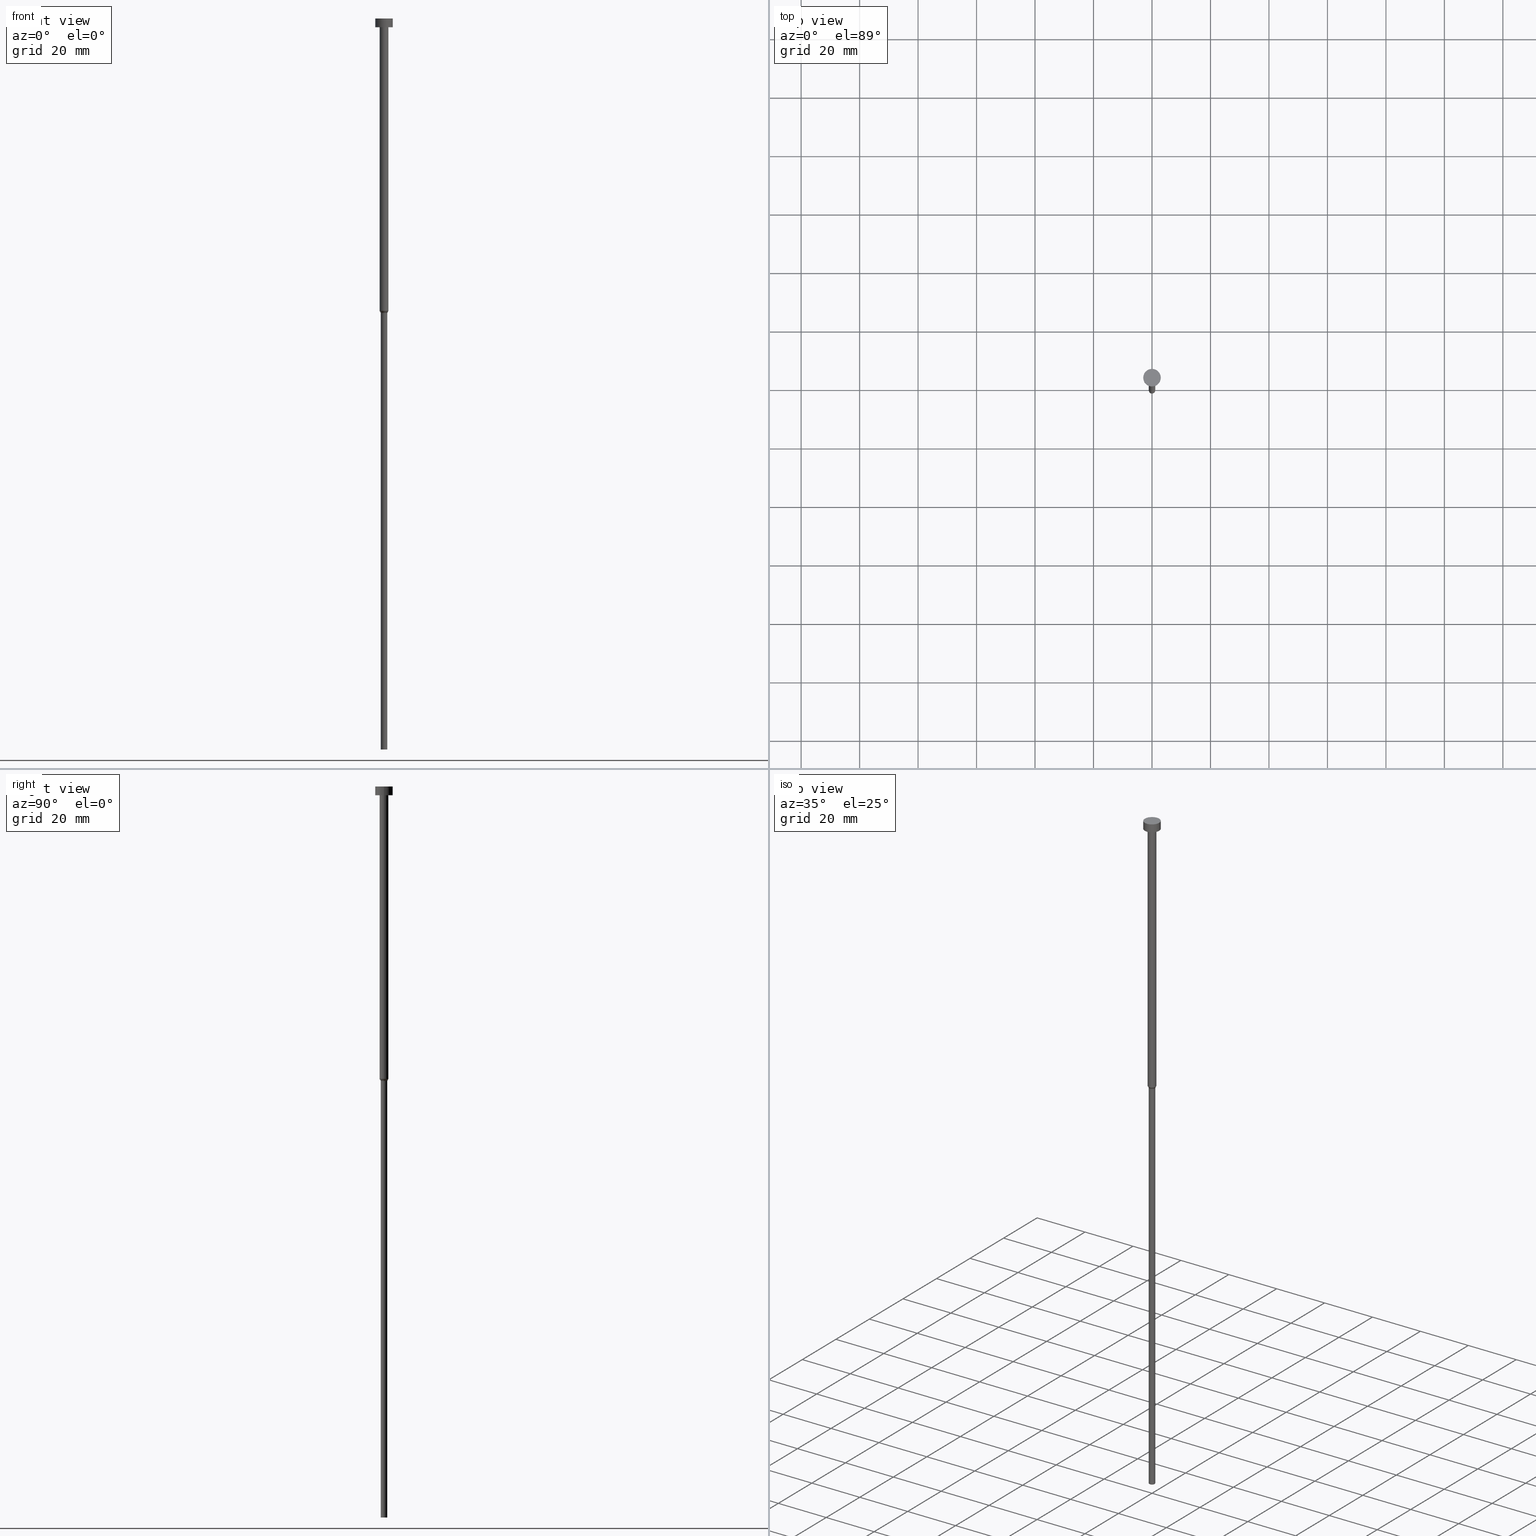
[diagram: canonical four-view strip — front | top / right | iso, engineering-drawing reading convention]
A machine part, canonical four-view strip (front | top / right | iso — engineering-drawing reading convention). The complete STEP part file that produces these views, byte-faithful:
ISO-10303-21;
HEADER;
FILE_DESCRIPTION (( 'STEP AP203' ),
    '1' );
FILE_NAME ('b989.STEP',
    '2023-02-13T09:00:45',
    ( '' ),
    ( '' ),
    'SwSTEP 2.0',
    'SolidWorks 2019',
    '' );
FILE_SCHEMA (( 'CONFIG_CONTROL_DESIGN' ));
ENDSEC;

DATA;
#1 = CONICAL_SURFACE ( 'NONE', #105, 1.500000000000000000, 0.5235987755983105840 ) ;
#2 = CARTESIAN_POINT ( 'NONE',  ( 0.000000000000000000, 0.000000000000000000, 0.000000000000000000 ) ) ;
#3 = FACE_OUTER_BOUND ( 'NONE', #237, .T. ) ;
#4 = AXIS2_PLACEMENT_3D ( 'NONE', #355, #332, #263 ) ;
#5 = LOCAL_TIME ( 10, 0, 45.00000000000000000, #192 ) ;
#6 = CARTESIAN_POINT ( 'NONE',  ( -1.100000000000000089, 1.347111479062088503E-16, -250.0000000000000000 ) ) ;
#7 = PRODUCT_RELATED_PRODUCT_CATEGORY ( 'detail', '', ( #226 ) ) ;
#8 = CARTESIAN_POINT ( 'NONE',  ( -3.000000000000000000, 3.673940397442059868E-16, -3.000000000000000888 ) ) ;
#9 = CARTESIAN_POINT ( 'NONE',  ( 3.000000000000000000, 0.000000000000000000, -3.673940397442059868E-16 ) ) ;
#10 = LOCAL_TIME ( 10, 0, 45.00000000000000000, #152 ) ;
#11 = DIRECTION ( 'NONE',  ( -0.000000000000000000, -0.000000000000000000, 1.000000000000000000 ) ) ;
#12 = CC_DESIGN_APPROVAL ( #302, ( #97 ) ) ;
#13 = PERSON_AND_ORGANIZATION ( #285, #63 ) ;
#14 = ORIENTED_EDGE ( 'NONE', *, *, #114, .F. ) ;
#15 = PERSON_AND_ORGANIZATION ( #285, #63 ) ;
#16 =( GEOMETRIC_REPRESENTATION_CONTEXT ( 3 ) GLOBAL_UNCERTAINTY_ASSIGNED_CONTEXT ( ( #299 ) ) GLOBAL_UNIT_ASSIGNED_CONTEXT ( ( #288, #94, #34 ) ) REPRESENTATION_CONTEXT ( 'NONE', 'WORKASPACE' ) );
#17 = ORIENTED_EDGE ( 'NONE', *, *, #345, .F. ) ;
#18 = PERSON_AND_ORGANIZATION_ROLE ( 'design_supplier' ) ;
#19 = EDGE_LOOP ( 'NONE', ( #153, #314, #130, #289 ) ) ;
#20 = VERTEX_POINT ( 'NONE', #193 ) ;
#21 = ADVANCED_FACE ( 'NONE', ( #244 ), #101, .T. ) ;
#22 = ORIENTED_EDGE ( 'NONE', *, *, #56, .F. ) ;
#23 = DIRECTION ( 'NONE',  ( -0.000000000000000000, -0.000000000000000000, 1.000000000000000000 ) ) ;
#24 = DIRECTION ( 'NONE',  ( 1.000000000000000000, 0.000000000000000000, 0.000000000000000000 ) ) ;
#25 = CYLINDRICAL_SURFACE ( 'NONE', #68, 1.500000000000000000 ) ;
#26 = DIRECTION ( 'NONE',  ( -0.000000000000000000, -0.000000000000000000, 1.000000000000000000 ) ) ;
#27 = DIRECTION ( 'NONE',  ( -0.000000000000000000, -0.000000000000000000, 1.000000000000000000 ) ) ;
#28 = CARTESIAN_POINT ( 'NONE',  ( 0.000000000000000000, 0.000000000000000000, -3.673940397442059868E-16 ) ) ;
#29 = DIRECTION ( 'NONE',  ( -0.000000000000000000, -0.000000000000000000, 1.000000000000000000 ) ) ;
#30 = DIRECTION ( 'NONE',  ( 1.000000000000000000, 0.000000000000000000, 0.000000000000000000 ) ) ;
#31 = DIRECTION ( 'NONE',  ( 1.000000000000000000, 0.000000000000000000, 0.000000000000000000 ) ) ;
#32 = ADVANCED_FACE ( 'NONE', ( #163 ), #1, .T. ) ;
#33 = ORIENTED_EDGE ( 'NONE', *, *, #354, .T. ) ;
#34 =( NAMED_UNIT ( * ) SI_UNIT ( $, .STERADIAN. ) SOLID_ANGLE_UNIT ( ) );
#35 = ORIENTED_EDGE ( 'NONE', *, *, #277, .F. ) ;
#36 = DATE_TIME_ROLE ( 'classification_date' ) ;
#37 = VERTEX_POINT ( 'NONE', #296 ) ;
#38 = PERSON_AND_ORGANIZATION_ROLE ( 'design_owner' ) ;
#39 = ORIENTED_EDGE ( 'NONE', *, *, #213, .F. ) ;
#40 = APPROVAL_STATUS ( 'not_yet_approved' ) ;
#41 = ORIENTED_EDGE ( 'NONE', *, *, #309, .F. ) ;
#42 = CARTESIAN_POINT ( 'NONE',  ( -1.500000000000000000, 1.836970198721029934E-16, -3.000000000000000888 ) ) ;
#43 = CIRCLE ( 'NONE', #161, 1.100000000000000089 ) ;
#44 = DIRECTION ( 'NONE',  ( -0.000000000000000000, -0.000000000000000000, 1.000000000000000000 ) ) ;
#45 = DIRECTION ( 'NONE',  ( -0.000000000000000000, -0.000000000000000000, 1.000000000000000000 ) ) ;
#46 = SHAPE_DEFINITION_REPRESENTATION ( #116, #74 ) ;
#47 = LINE ( 'NONE', #300, #272 ) ;
#48 = LOCAL_TIME ( 10, 0, 45.00000000000000000, #186 ) ;
#49 = DIRECTION ( 'NONE',  ( 1.000000000000000000, 0.000000000000000000, 0.000000000000000000 ) ) ;
#50 = PLANE ( 'NONE',  #225 ) ;
#51 = LINE ( 'NONE', #227, #154 ) ;
#52 = APPROVAL_PERSON_ORGANIZATION ( #159, #302, #340 ) ;
#53 = CARTESIAN_POINT ( 'NONE',  ( 3.000000000000000000, 0.000000000000000000, 0.000000000000000000 ) ) ;
#54 = FACE_OUTER_BOUND ( 'NONE', #206, .T. ) ;
#55 = CARTESIAN_POINT ( 'NONE',  ( 0.000000000000000000, 0.000000000000000000, -1.836970198721029934E-16 ) ) ;
#56 = EDGE_CURVE ( 'NONE', #230, #317, #188, .T. ) ;
#57 = DIRECTION ( 'NONE',  ( 1.000000000000000000, 0.000000000000000000, 0.000000000000000000 ) ) ;
#58 = VERTEX_POINT ( 'NONE', #75 ) ;
#59 = PERSON_AND_ORGANIZATION ( #285, #63 ) ;
#60 = ORIENTED_EDGE ( 'NONE', *, *, #86, .T. ) ;
#61 = PERSON_AND_ORGANIZATION_ROLE ( 'classification_officer' ) ;
#62 = ORIENTED_EDGE ( 'NONE', *, *, #328, .T. ) ;
#63 = ORGANIZATION ( 'NEUR�EN�', 'NEUR�EN�', '' ) ;
#64 = ORIENTED_EDGE ( 'NONE', *, *, #236, .T. ) ;
#65 = ADVANCED_FACE ( 'NONE', ( #77 ), #350, .T. ) ;
#66 = PERSON_AND_ORGANIZATION_ROLE ( 'creator' ) ;
#67 = ORIENTED_EDGE ( 'NONE', *, *, #354, .F. ) ;
#68 = AXIS2_PLACEMENT_3D ( 'NONE', #217, #106, #24 ) ;
#69 = CARTESIAN_POINT ( 'NONE',  ( 0.000000000000000000, 0.000000000000000000, -100.0000000000000000 ) ) ;
#70 = EDGE_CURVE ( 'NONE', #20, #127, #294, .T. ) ;
#71 = EDGE_CURVE ( 'NONE', #292, #234, #191, .T. ) ;
#72 = CARTESIAN_POINT ( 'NONE',  ( 0.000000000000000000, 0.000000000000000000, -3.000000000000000888 ) ) ;
#73 = CONICAL_SURFACE ( 'NONE', #276, 1.500000000000000000, 0.5235987755983105840 ) ;
#74 = ADVANCED_BREP_SHAPE_REPRESENTATION ( 'b989', ( #83, #184 ), #16 ) ;
#75 = CARTESIAN_POINT ( 'NONE',  ( 1.500000000000000000, 0.000000000000000000, -100.0000000000000000 ) ) ;
#76 = DIRECTION ( 'NONE',  ( 1.000000000000000000, 0.000000000000000000, 0.000000000000000000 ) ) ;
#77 = FACE_OUTER_BOUND ( 'NONE', #133, .T. ) ;
#78 = CIRCLE ( 'NONE', #298, 1.100000000000000089 ) ;
#79 = DIRECTION ( 'NONE',  ( 0.000000000000000000, 0.000000000000000000, -1.000000000000000000 ) ) ;
#80 = AXIS2_PLACEMENT_3D ( 'NONE', #2, #194, #297 ) ;
#81 = CARTESIAN_POINT ( 'NONE',  ( 1.500000000000000000, 0.000000000000000000, 0.000000000000000000 ) ) ;
#82 = VECTOR ( 'NONE', #29, 1000.000000000000000 ) ;
#83 = MANIFOLD_SOLID_BREP ( 'Rotovat1', #264 ) ;
#84 = DIRECTION ( 'NONE',  ( 1.000000000000000000, 0.000000000000000000, 0.000000000000000000 ) ) ;
#85 = CARTESIAN_POINT ( 'NONE',  ( 0.000000000000000000, 0.000000000000000000, -100.6928203230275329 ) ) ;
#86 = EDGE_CURVE ( 'NONE', #179, #127, #344, .T. ) ;
#87 = CARTESIAN_POINT ( 'NONE',  ( -3.000000000000000000, 3.673940397442059868E-16, -3.673940397442059868E-16 ) ) ;
#88 = AXIS2_PLACEMENT_3D ( 'NONE', #305, #172, #30 ) ;
#89 = DATE_AND_TIME ( #342, #169 ) ;
#90 = ORIENTED_EDGE ( 'NONE', *, *, #70, .F. ) ;
#91 = DIRECTION ( 'NONE',  ( 1.000000000000000000, 0.000000000000000000, 0.000000000000000000 ) ) ;
#92 = ORIENTED_EDGE ( 'NONE', *, *, #213, .T. ) ;
#93 = ADVANCED_FACE ( 'NONE', ( #3 ), #25, .T. ) ;
#94 =( NAMED_UNIT ( * ) PLANE_ANGLE_UNIT ( ) SI_UNIT ( $, .RADIAN. ) );
#95 = ORIENTED_EDGE ( 'NONE', *, *, #223, .T. ) ;
#96 = DATE_AND_TIME ( #235, #10 ) ;
#97 = PRODUCT_DEFINITION_FORMATION_WITH_SPECIFIED_SOURCE ( 'LIBOVOLN�', '', #226, .NOT_KNOWN. ) ;
#98 = ORIENTED_EDGE ( 'NONE', *, *, #134, .F. ) ;
#99 = ORIENTED_EDGE ( 'NONE', *, *, #312, .F. ) ;
#100 = DIRECTION ( 'NONE',  ( 1.000000000000000000, 0.000000000000000000, 0.000000000000000000 ) ) ;
#101 = CYLINDRICAL_SURFACE ( 'NONE', #310, 1.500000000000000000 ) ;
#102 = CIRCLE ( 'NONE', #258, 3.000000000000000000 ) ;
#103 = APPROVAL_ROLE ( '' ) ;
#104 = DIRECTION ( 'NONE',  ( 1.000000000000000000, 0.000000000000000000, 0.000000000000000000 ) ) ;
#105 = AXIS2_PLACEMENT_3D ( 'NONE', #69, #44, #104 ) ;
#106 = DIRECTION ( 'NONE',  ( -0.000000000000000000, -0.000000000000000000, 1.000000000000000000 ) ) ;
#107 = CYLINDRICAL_SURFACE ( 'NONE', #199, 3.000000000000000000 ) ;
#108 = CARTESIAN_POINT ( 'NONE',  ( 0.000000000000000000, 0.000000000000000000, -100.0000000000000000 ) ) ;
#109 = DIRECTION ( 'NONE',  ( 1.000000000000000000, 0.000000000000000000, 0.000000000000000000 ) ) ;
#110 = EDGE_CURVE ( 'NONE', #37, #20, #47, .T. ) ;
#111 = DIRECTION ( 'NONE',  ( 0.000000000000000000, 0.000000000000000000, -1.000000000000000000 ) ) ;
#112 = AXIS2_PLACEMENT_3D ( 'NONE', #331, #26, #76 ) ;
#113 = APPROVAL_PERSON_ORGANIZATION ( #233, #248, #103 ) ;
#114 = EDGE_CURVE ( 'NONE', #317, #58, #273, .T. ) ;
#115 = CARTESIAN_POINT ( 'NONE',  ( 1.100000000000000089, 0.000000000000000000, -250.0000000000000000 ) ) ;
#116 = PRODUCT_DEFINITION_SHAPE ( 'NONE', 'NONE',  #221 ) ;
#117 = VECTOR ( 'NONE', #246, 1000.000000000000000 ) ;
#118 = CARTESIAN_POINT ( 'NONE',  ( 0.000000000000000000, 0.000000000000000000, -100.6928203230275329 ) ) ;
#119 = APPROVAL_ROLE ( '' ) ;
#120 = EDGE_LOOP ( 'NONE', ( #92, #319 ) ) ;
#121 = VECTOR ( 'NONE', #196, 1000.000000000000000 ) ;
#122 = APPROVAL_STATUS ( 'not_yet_approved' ) ;
#123 = LOCAL_TIME ( 10, 0, 45.00000000000000000, #180 ) ;
#124 = ORIENTED_EDGE ( 'NONE', *, *, #268, .T. ) ;
#125 = ADVANCED_FACE ( 'NONE', ( #249 ), #168, .T. ) ;
#126 = CALENDAR_DATE ( 2023, 13, 2 ) ;
#127 = VERTEX_POINT ( 'NONE', #42 ) ;
#128 = DIRECTION ( 'NONE',  ( 0.000000000000000000, 0.000000000000000000, 1.000000000000000000 ) ) ;
#129 = EDGE_LOOP ( 'NONE', ( #208, #17 ) ) ;
#130 = ORIENTED_EDGE ( 'NONE', *, *, #86, .F. ) ;
#131 = CARTESIAN_POINT ( 'NONE',  ( 1.100000000000000089, 0.000000000000000000, 0.000000000000000000 ) ) ;
#132 = EDGE_CURVE ( 'NONE', #321, #230, #279, .T. ) ;
#133 = EDGE_LOOP ( 'NONE', ( #261, #62, #209, #22 ) ) ;
#134 = EDGE_CURVE ( 'NONE', #127, #179, #269, .T. ) ;
#135 = DIRECTION ( 'NONE',  ( -0.5000000000000101030, 6.123233995736888063E-17, 0.8660254037844328234 ) ) ;
#136 = AXIS2_PLACEMENT_3D ( 'NONE', #224, #147, #91 ) ;
#137 = CC_DESIGN_APPROVAL ( #248, ( #178 ) ) ;
#138 = DESIGN_CONTEXT ( 'detailed design', #175, 'design' ) ;
#139 = FACE_OUTER_BOUND ( 'NONE', #187, .T. ) ;
#140 = CARTESIAN_POINT ( 'NONE',  ( 0.000000000000000000, 0.000000000000000000, 0.000000000000000000 ) ) ;
#141 = DIRECTION ( 'NONE',  ( -0.000000000000000000, -0.000000000000000000, 1.000000000000000000 ) ) ;
#142 = ADVANCED_FACE ( 'NONE', ( #139 ), #170, .T. ) ;
#143 = ADVANCED_FACE ( 'NONE', ( #212, #326 ), #295, .T. ) ;
#144 = DIRECTION ( 'NONE',  ( 1.000000000000000000, 0.000000000000000000, 0.000000000000000000 ) ) ;
#145 = DIRECTION ( 'NONE',  ( -0.000000000000000000, -0.000000000000000000, 1.000000000000000000 ) ) ;
#146 = ADVANCED_FACE ( 'NONE', ( #308 ), #73, .T. ) ;
#147 = DIRECTION ( 'NONE',  ( -0.000000000000000000, -0.000000000000000000, 1.000000000000000000 ) ) ;
#148 = AXIS2_PLACEMENT_3D ( 'NONE', #250, #280, #31 ) ;
#149 = CC_DESIGN_SECURITY_CLASSIFICATION ( #178, ( #97 ) ) ;
#150 = DIRECTION ( 'NONE',  ( -0.000000000000000000, -0.000000000000000000, 1.000000000000000000 ) ) ;
#151 = EDGE_CURVE ( 'NONE', #317, #37, #78, .T. ) ;
#152 = COORDINATED_UNIVERSAL_TIME_OFFSET ( 1, 0, .AHEAD. ) ;
#153 = ORIENTED_EDGE ( 'NONE', *, *, #324, .T. ) ;
#154 = VECTOR ( 'NONE', #201, 1000.000000000000000 ) ;
#155 = ORIENTED_EDGE ( 'NONE', *, *, #132, .T. ) ;
#156 = APPLICATION_CONTEXT ( 'configuration controlled 3d designs of mechanical parts and assemblies' ) ;
#157 = DIRECTION ( 'NONE',  ( 1.000000000000000000, 0.000000000000000000, 0.000000000000000000 ) ) ;
#158 = ORIENTED_EDGE ( 'NONE', *, *, #312, .T. ) ;
#159 = PERSON_AND_ORGANIZATION ( #285, #63 ) ;
#160 = ORIENTED_EDGE ( 'NONE', *, *, #268, .F. ) ;
#161 = AXIS2_PLACEMENT_3D ( 'NONE', #218, #145, #334 ) ;
#162 = DIRECTION ( 'NONE',  ( -0.000000000000000000, -0.000000000000000000, 1.000000000000000000 ) ) ;
#163 = FACE_OUTER_BOUND ( 'NONE', #349, .T. ) ;
#164 = AXIS2_PLACEMENT_3D ( 'NONE', #72, #266, #190 ) ;
#165 = CC_DESIGN_PERSON_AND_ORGANIZATION_ASSIGNMENT ( #59, #18, ( #97 ) ) ;
#166 = APPROVAL_DATE_TIME ( #243, #248 ) ;
#167 = DIRECTION ( 'NONE',  ( 1.000000000000000000, 0.000000000000000000, 0.000000000000000000 ) ) ;
#168 = CYLINDRICAL_SURFACE ( 'NONE', #4, 1.100000000000000089 ) ;
#169 = LOCAL_TIME ( 10, 0, 45.00000000000000000, #231 ) ;
#170 = CYLINDRICAL_SURFACE ( 'NONE', #327, 3.000000000000000000 ) ;
#171 = CARTESIAN_POINT ( 'NONE',  ( 0.000000000000000000, -3.000000000000000000, -3.000000000000000888 ) ) ;
#172 = DIRECTION ( 'NONE',  ( -0.000000000000000000, -0.000000000000000000, 1.000000000000000000 ) ) ;
#173 = CIRCLE ( 'NONE', #136, 3.000000000000000000 ) ;
#174 = FACE_OUTER_BOUND ( 'NONE', #183, .T. ) ;
#175 = APPLICATION_CONTEXT ( 'configuration controlled 3d designs of mechanical parts and assemblies' ) ;
#176 = DIRECTION ( 'NONE',  ( 1.000000000000000000, 0.000000000000000000, 0.000000000000000000 ) ) ;
#177 = CC_DESIGN_DATE_AND_TIME_ASSIGNMENT ( #283, #36, ( #178 ) ) ;
#178 = SECURITY_CLASSIFICATION ( '', '', #205 ) ;
#179 = VERTEX_POINT ( 'NONE', #338 ) ;
#180 = COORDINATED_UNIVERSAL_TIME_OFFSET ( 1, 0, .AHEAD. ) ;
#181 = EDGE_LOOP ( 'NONE', ( #60, #232 ) ) ;
#182 = PERSON_AND_ORGANIZATION_ROLE ( 'creator' ) ;
#183 = EDGE_LOOP ( 'NONE', ( #41, #239 ) ) ;
#184 = AXIS2_PLACEMENT_3D ( 'NONE', #207, #128, #57 ) ;
#185 = ORIENTED_EDGE ( 'NONE', *, *, #56, .T. ) ;
#186 = COORDINATED_UNIVERSAL_TIME_OFFSET ( 1, 0, .AHEAD. ) ;
#187 = EDGE_LOOP ( 'NONE', ( #259, #124, #39, #351 ) ) ;
#188 = LINE ( 'NONE', #131, #303 ) ;
#189 = ORIENTED_EDGE ( 'NONE', *, *, #324, .F. ) ;
#190 = DIRECTION ( 'NONE',  ( 1.000000000000000000, 0.000000000000000000, 0.000000000000000000 ) ) ;
#191 = CIRCLE ( 'NONE', #164, 3.000000000000000000 ) ;
#192 = COORDINATED_UNIVERSAL_TIME_OFFSET ( 1, 0, .AHEAD. ) ;
#193 = CARTESIAN_POINT ( 'NONE',  ( -1.500000000000000000, 1.836970198721029934E-16, -100.0000000000000000 ) ) ;
#194 = DIRECTION ( 'NONE',  ( -0.000000000000000000, -0.000000000000000000, 1.000000000000000000 ) ) ;
#195 = CIRCLE ( 'NONE', #337, 1.100000000000000089 ) ;
#196 = DIRECTION ( 'NONE',  ( -0.000000000000000000, -0.000000000000000000, 1.000000000000000000 ) ) ;
#197 = LINE ( 'NONE', #81, #245 ) ;
#198 = DIRECTION ( 'NONE',  ( -0.000000000000000000, -0.000000000000000000, 1.000000000000000000 ) ) ;
#199 = AXIS2_PLACEMENT_3D ( 'NONE', #335, #198, #176 ) ;
#200 = LINE ( 'NONE', #53, #121 ) ;
#201 = DIRECTION ( 'NONE',  ( -0.000000000000000000, -0.000000000000000000, 1.000000000000000000 ) ) ;
#202 = DIRECTION ( 'NONE',  ( -0.000000000000000000, -0.000000000000000000, 1.000000000000000000 ) ) ;
#203 = APPROVAL_DATE_TIME ( #89, #302 ) ;
#204 = EDGE_LOOP ( 'NONE', ( #242, #155, #185, #67 ) ) ;
#205 = SECURITY_CLASSIFICATION_LEVEL ( 'unclassified' ) ;
#206 = EDGE_LOOP ( 'NONE', ( #160, #347, #95, #35 ) ) ;
#207 = CARTESIAN_POINT ( 'NONE',  ( 0.000000000000000000, 0.000000000000000000, 0.000000000000000000 ) ) ;
#208 = ORIENTED_EDGE ( 'NONE', *, *, #71, .F. ) ;
#209 = ORIENTED_EDGE ( 'NONE', *, *, #151, .F. ) ;
#210 = APPROVAL_STATUS ( 'not_yet_approved' ) ;
#211 = DIRECTION ( 'NONE',  ( -0.000000000000000000, -0.000000000000000000, 1.000000000000000000 ) ) ;
#212 = FACE_BOUND ( 'NONE', #181, .T. ) ;
#213 = EDGE_CURVE ( 'NONE', #343, #348, #102, .T. ) ;
#214 = CIRCLE ( 'NONE', #148, 1.500000000000000000 ) ;
#215 = CARTESIAN_POINT ( 'NONE',  ( 0.000000000000000000, 0.000000000000000000, 0.000000000000000000 ) ) ;
#216 = CARTESIAN_POINT ( 'NONE',  ( 0.000000000000000000, 0.000000000000000000, -3.000000000000000888 ) ) ;
#217 = CARTESIAN_POINT ( 'NONE',  ( 0.000000000000000000, 0.000000000000000000, 0.000000000000000000 ) ) ;
#218 = CARTESIAN_POINT ( 'NONE',  ( 0.000000000000000000, 0.000000000000000000, -250.0000000000000000 ) ) ;
#219 = CIRCLE ( 'NONE', #313, 3.000000000000000000 ) ;
#220 = DIRECTION ( 'NONE',  ( -0.000000000000000000, -0.000000000000000000, 1.000000000000000000 ) ) ;
#221 = PRODUCT_DEFINITION ( 'NEZN�M�', '', #97, #138 ) ;
#222 = PLANE ( 'NONE',  #352 ) ;
#223 = EDGE_CURVE ( 'NONE', #292, #343, #200, .T. ) ;
#224 = CARTESIAN_POINT ( 'NONE',  ( 0.000000000000000000, 0.000000000000000000, -3.000000000000000888 ) ) ;
#225 = AXIS2_PLACEMENT_3D ( 'NONE', #274, #79, #254 ) ;
#226 = PRODUCT ( 'b989', 'b989', '', ( #320 ) ) ;
#227 = CARTESIAN_POINT ( 'NONE',  ( -3.000000000000000000, 3.673940397442059868E-16, 0.000000000000000000 ) ) ;
#228 = PERSON_AND_ORGANIZATION ( #285, #63 ) ;
#229 = PERSON_AND_ORGANIZATION ( #285, #63 ) ;
#230 = VERTEX_POINT ( 'NONE', #115 ) ;
#231 = COORDINATED_UNIVERSAL_TIME_OFFSET ( 1, 0, .AHEAD. ) ;
#232 = ORIENTED_EDGE ( 'NONE', *, *, #134, .T. ) ;
#233 = PERSON_AND_ORGANIZATION ( #285, #63 ) ;
#234 = VERTEX_POINT ( 'NONE', #8 ) ;
#235 = CALENDAR_DATE ( 2023, 13, 2 ) ;
#236 = EDGE_CURVE ( 'NONE', #58, #179, #197, .T. ) ;
#237 = EDGE_LOOP ( 'NONE', ( #90, #158, #64, #98 ) ) ;
#238 = CC_DESIGN_APPROVAL ( #329, ( #221 ) ) ;
#239 = ORIENTED_EDGE ( 'NONE', *, *, #132, .F. ) ;
#240 = CC_DESIGN_PERSON_AND_ORGANIZATION_ASSIGNMENT ( #315, #182, ( #97 ) ) ;
#241 = AXIS2_PLACEMENT_3D ( 'NONE', #216, #27, #167 ) ;
#242 = ORIENTED_EDGE ( 'NONE', *, *, #328, .F. ) ;
#243 = DATE_AND_TIME ( #353, #5 ) ;
#244 = FACE_OUTER_BOUND ( 'NONE', #19, .T. ) ;
#245 = VECTOR ( 'NONE', #141, 1000.000000000000000 ) ;
#246 = DIRECTION ( 'NONE',  ( 0.5000000000000101030, 0.000000000000000000, 0.8660254037844328234 ) ) ;
#247 = CARTESIAN_POINT ( 'NONE',  ( 1.500000000000000000, 0.000000000000000000, -100.0000000000000000 ) ) ;
#248 = APPROVAL ( #210, 'NEUR�EN�' ) ;
#249 = FACE_OUTER_BOUND ( 'NONE', #204, .T. ) ;
#250 = CARTESIAN_POINT ( 'NONE',  ( 0.000000000000000000, 0.000000000000000000, -100.0000000000000000 ) ) ;
#251 = CIRCLE ( 'NONE', #88, 1.500000000000000000 ) ;
#252 = CARTESIAN_POINT ( 'NONE',  ( 0.000000000000000000, 0.000000000000000000, -3.673940397442059868E-16 ) ) ;
#253 = LINE ( 'NONE', #275, #82 ) ;
#254 = DIRECTION ( 'NONE',  ( -1.000000000000000000, 0.000000000000000000, -0.000000000000000000 ) ) ;
#255 = DIRECTION ( 'NONE',  ( 0.000000000000000000, -0.000000000000000000, 1.000000000000000000 ) ) ;
#256 = ORIENTED_EDGE ( 'NONE', *, *, #114, .T. ) ;
#257 = EDGE_LOOP ( 'NONE', ( #284, #33, #256, #99 ) ) ;
#258 = AXIS2_PLACEMENT_3D ( 'NONE', #252, #220, #336 ) ;
#259 = ORIENTED_EDGE ( 'NONE', *, *, #71, .T. ) ;
#260 = APPLICATION_PROTOCOL_DEFINITION ( 'international standard', 'config_control_design', 1994, #175 ) ;
#261 = ORIENTED_EDGE ( 'NONE', *, *, #309, .T. ) ;
#262 = ORIENTED_EDGE ( 'NONE', *, *, #110, .T. ) ;
#263 = DIRECTION ( 'NONE',  ( 1.000000000000000000, 0.000000000000000000, 0.000000000000000000 ) ) ;
#264 = CLOSED_SHELL ( 'NONE', ( #142, #21, #32, #65, #267, #125, #146, #93, #143, #307, #301 ) ) ;
#265 = DIRECTION ( 'NONE',  ( 1.000000000000000000, 0.000000000000000000, 0.000000000000000000 ) ) ;
#266 = DIRECTION ( 'NONE',  ( -0.000000000000000000, -0.000000000000000000, 1.000000000000000000 ) ) ;
#267 = ADVANCED_FACE ( 'NONE', ( #174 ), #50, .T. ) ;
#268 = EDGE_CURVE ( 'NONE', #234, #348, #51, .T. ) ;
#269 = CIRCLE ( 'NONE', #112, 1.500000000000000000 ) ;
#270 = CARTESIAN_POINT ( 'NONE',  ( -1.500000000000000000, 1.836970198721029934E-16, 0.000000000000000000 ) ) ;
#271 = CC_DESIGN_PERSON_AND_ORGANIZATION_ASSIGNMENT ( #13, #61, ( #178 ) ) ;
#272 = VECTOR ( 'NONE', #135, 1000.000000000000000 ) ;
#273 = LINE ( 'NONE', #247, #117 ) ;
#274 = CARTESIAN_POINT ( 'NONE',  ( 0.000000000000000000, 0.000000000000000000, -250.0000000000000000 ) ) ;
#275 = CARTESIAN_POINT ( 'NONE',  ( -1.100000000000000089, 1.347111479062088503E-16, 0.000000000000000000 ) ) ;
#276 = AXIS2_PLACEMENT_3D ( 'NONE', #108, #150, #84 ) ;
#277 = EDGE_CURVE ( 'NONE', #348, #343, #219, .T. ) ;
#278 = DIRECTION ( 'NONE',  ( -0.000000000000000000, -0.000000000000000000, 1.000000000000000000 ) ) ;
#279 = CIRCLE ( 'NONE', #287, 1.100000000000000089 ) ;
#280 = DIRECTION ( 'NONE',  ( -0.000000000000000000, -0.000000000000000000, 1.000000000000000000 ) ) ;
#281 = DIRECTION ( 'NONE',  ( -1.000000000000000000, 0.000000000000000000, -0.000000000000000000 ) ) ;
#282 = AXIS2_PLACEMENT_3D ( 'NONE', #171, #111, #281 ) ;
#283 = DATE_AND_TIME ( #286, #123 ) ;
#284 = ORIENTED_EDGE ( 'NONE', *, *, #110, .F. ) ;
#285 = PERSON ( 'NEUR�EN�', 'NEUR�EN�', 'NEUR�EN�', ('NEUR�EN�'), ('NEUR�EN�'), ('NEUR�EN�') ) ;
#286 = CALENDAR_DATE ( 2023, 13, 2 ) ;
#287 = AXIS2_PLACEMENT_3D ( 'NONE', #325, #162, #49 ) ;
#288 =( LENGTH_UNIT ( ) NAMED_UNIT ( * ) SI_UNIT ( .MILLI., .METRE. ) );
#289 = ORIENTED_EDGE ( 'NONE', *, *, #236, .F. ) ;
#290 = VECTOR ( 'NONE', #45, 1000.000000000000000 ) ;
#291 = DATE_TIME_ROLE ( 'creation_date' ) ;
#292 = VERTEX_POINT ( 'NONE', #339 ) ;
#293 = CC_DESIGN_PERSON_AND_ORGANIZATION_ASSIGNMENT ( #228, #38, ( #226 ) ) ;
#294 = LINE ( 'NONE', #270, #290 ) ;
#295 = PLANE ( 'NONE',  #282 ) ;
#296 = CARTESIAN_POINT ( 'NONE',  ( -1.100000000000000089, 1.347111479062088503E-16, -100.6928203230275329 ) ) ;
#297 = DIRECTION ( 'NONE',  ( 1.000000000000000000, 0.000000000000000000, 0.000000000000000000 ) ) ;
#298 = AXIS2_PLACEMENT_3D ( 'NONE', #85, #278, #109 ) ;
#299 = UNCERTAINTY_MEASURE_WITH_UNIT (LENGTH_MEASURE( 1.000000000000000082E-05 ), #288, 'distance_accuracy_value', 'NONE');
#300 = CARTESIAN_POINT ( 'NONE',  ( -1.500000000000000000, 1.836970198721029934E-16, -100.0000000000000000 ) ) ;
#301 = ADVANCED_FACE ( 'NONE', ( #306 ), #222, .T. ) ;
#302 = APPROVAL ( #122, 'NEUR�EN�' ) ;
#303 = VECTOR ( 'NONE', #330, 1000.000000000000000 ) ;
#304 = CARTESIAN_POINT ( 'NONE',  ( 1.100000000000000089, 0.000000000000000000, -100.6928203230275329 ) ) ;
#305 = CARTESIAN_POINT ( 'NONE',  ( 0.000000000000000000, 0.000000000000000000, -100.0000000000000000 ) ) ;
#306 = FACE_OUTER_BOUND ( 'NONE', #120, .T. ) ;
#307 = ADVANCED_FACE ( 'NONE', ( #54 ), #107, .T. ) ;
#308 = FACE_OUTER_BOUND ( 'NONE', #257, .T. ) ;
#309 = EDGE_CURVE ( 'NONE', #230, #321, #43, .T. ) ;
#310 = AXIS2_PLACEMENT_3D ( 'NONE', #215, #23, #265 ) ;
#311 = DIRECTION ( 'NONE',  ( 1.000000000000000000, 0.000000000000000000, 0.000000000000000000 ) ) ;
#312 = EDGE_CURVE ( 'NONE', #20, #58, #214, .T. ) ;
#313 = AXIS2_PLACEMENT_3D ( 'NONE', #28, #11, #311 ) ;
#314 = ORIENTED_EDGE ( 'NONE', *, *, #70, .T. ) ;
#315 = PERSON_AND_ORGANIZATION ( #285, #63 ) ;
#316 = CC_DESIGN_PERSON_AND_ORGANIZATION_ASSIGNMENT ( #229, #66, ( #221 ) ) ;
#317 = VERTEX_POINT ( 'NONE', #304 ) ;
#318 = DATE_AND_TIME ( #126, #48 ) ;
#319 = ORIENTED_EDGE ( 'NONE', *, *, #277, .T. ) ;
#320 = MECHANICAL_CONTEXT ( 'NONE', #156, 'mechanical' ) ;
#321 = VERTEX_POINT ( 'NONE', #6 ) ;
#322 = APPROVAL_PERSON_ORGANIZATION ( #15, #329, #119 ) ;
#323 = APPROVAL_DATE_TIME ( #96, #329 ) ;
#324 = EDGE_CURVE ( 'NONE', #58, #20, #251, .T. ) ;
#325 = CARTESIAN_POINT ( 'NONE',  ( 0.000000000000000000, 0.000000000000000000, -250.0000000000000000 ) ) ;
#326 = FACE_OUTER_BOUND ( 'NONE', #129, .T. ) ;
#327 = AXIS2_PLACEMENT_3D ( 'NONE', #140, #211, #100 ) ;
#328 = EDGE_CURVE ( 'NONE', #321, #37, #253, .T. ) ;
#329 = APPROVAL ( #40, 'NEUR�EN�' ) ;
#330 = DIRECTION ( 'NONE',  ( -0.000000000000000000, -0.000000000000000000, 1.000000000000000000 ) ) ;
#331 = CARTESIAN_POINT ( 'NONE',  ( 0.000000000000000000, 0.000000000000000000, -3.000000000000000888 ) ) ;
#332 = DIRECTION ( 'NONE',  ( -0.000000000000000000, -0.000000000000000000, 1.000000000000000000 ) ) ;
#333 = CC_DESIGN_DATE_AND_TIME_ASSIGNMENT ( #318, #291, ( #221 ) ) ;
#334 = DIRECTION ( 'NONE',  ( 1.000000000000000000, 0.000000000000000000, 0.000000000000000000 ) ) ;
#335 = CARTESIAN_POINT ( 'NONE',  ( 0.000000000000000000, 0.000000000000000000, 0.000000000000000000 ) ) ;
#336 = DIRECTION ( 'NONE',  ( 1.000000000000000000, 0.000000000000000000, 0.000000000000000000 ) ) ;
#337 = AXIS2_PLACEMENT_3D ( 'NONE', #118, #202, #157 ) ;
#338 = CARTESIAN_POINT ( 'NONE',  ( 1.500000000000000000, 0.000000000000000000, -3.000000000000000888 ) ) ;
#339 = CARTESIAN_POINT ( 'NONE',  ( 3.000000000000000000, 0.000000000000000000, -3.000000000000000888 ) ) ;
#340 = APPROVAL_ROLE ( '' ) ;
#341 = ORIENTED_EDGE ( 'NONE', *, *, #151, .T. ) ;
#342 = CALENDAR_DATE ( 2023, 13, 2 ) ;
#343 = VERTEX_POINT ( 'NONE', #9 ) ;
#344 = CIRCLE ( 'NONE', #241, 1.500000000000000000 ) ;
#345 = EDGE_CURVE ( 'NONE', #234, #292, #173, .T. ) ;
#346 = APPLICATION_PROTOCOL_DEFINITION ( 'international standard', 'config_control_design', 1994, #156 ) ;
#347 = ORIENTED_EDGE ( 'NONE', *, *, #345, .T. ) ;
#348 = VERTEX_POINT ( 'NONE', #87 ) ;
#349 = EDGE_LOOP ( 'NONE', ( #341, #262, #189, #14 ) ) ;
#350 = CYLINDRICAL_SURFACE ( 'NONE', #80, 1.100000000000000089 ) ;
#351 = ORIENTED_EDGE ( 'NONE', *, *, #223, .F. ) ;
#352 = AXIS2_PLACEMENT_3D ( 'NONE', #55, #255, #144 ) ;
#353 = CALENDAR_DATE ( 2023, 13, 2 ) ;
#354 = EDGE_CURVE ( 'NONE', #37, #317, #195, .T. ) ;
#355 = CARTESIAN_POINT ( 'NONE',  ( 0.000000000000000000, 0.000000000000000000, 0.000000000000000000 ) ) ;
ENDSEC;
END-ISO-10303-21;
